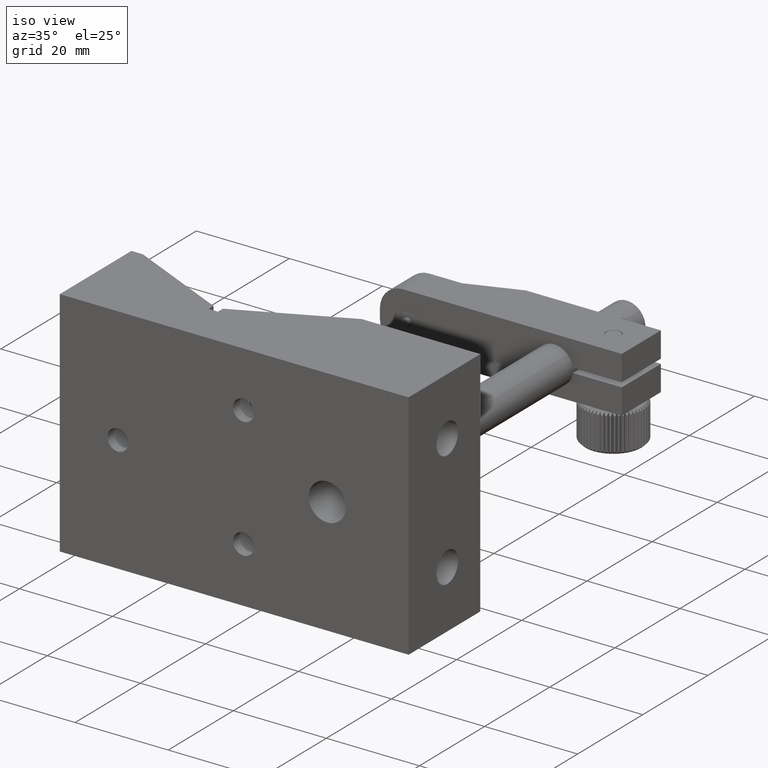
[diagram: clean part render]
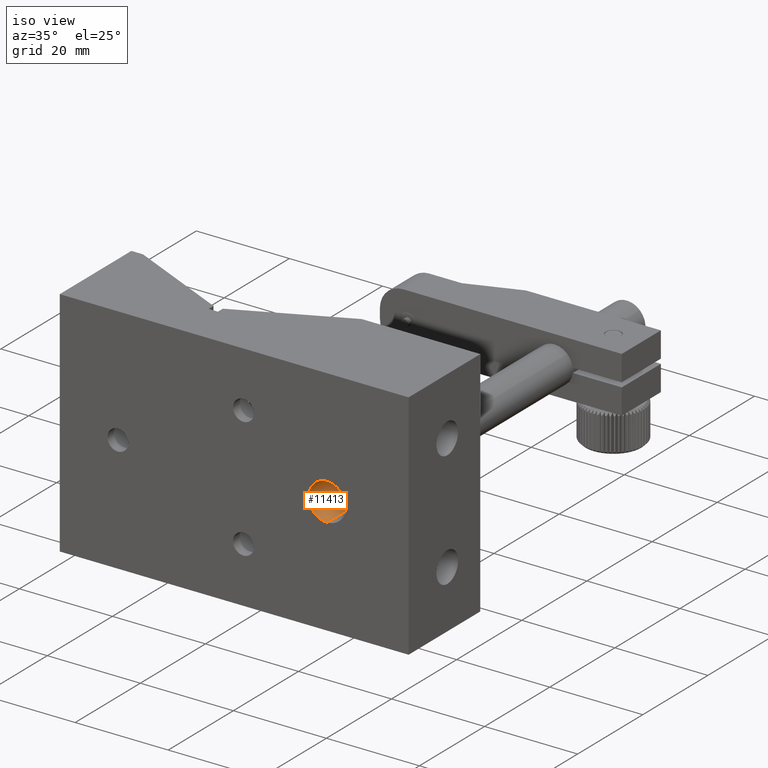
[diagram: same view with one face highlighted and labeled with its STEP entity id]
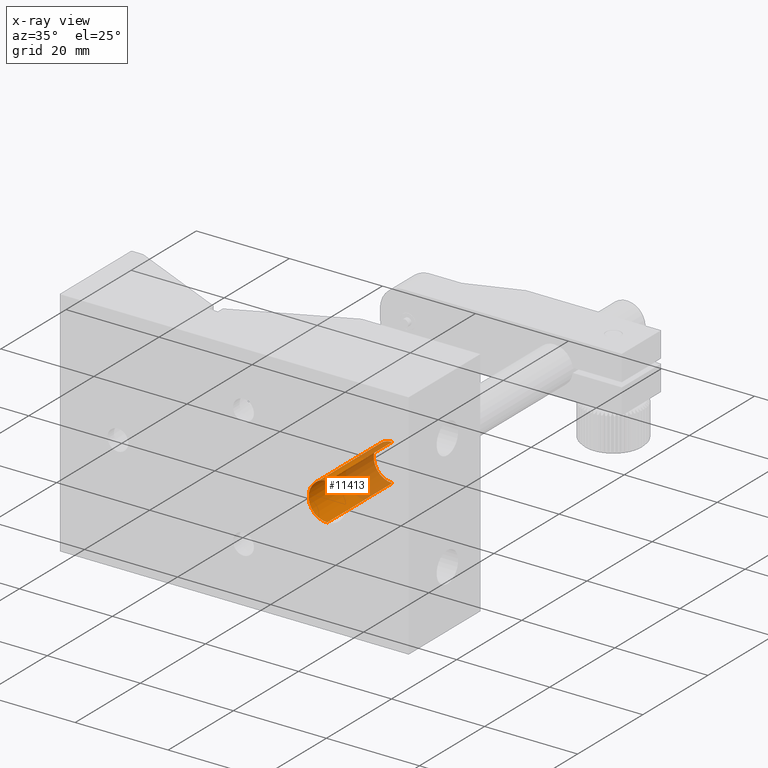
[diagram: x-ray of the same camera — body ghosted, the highlighted face saturated]
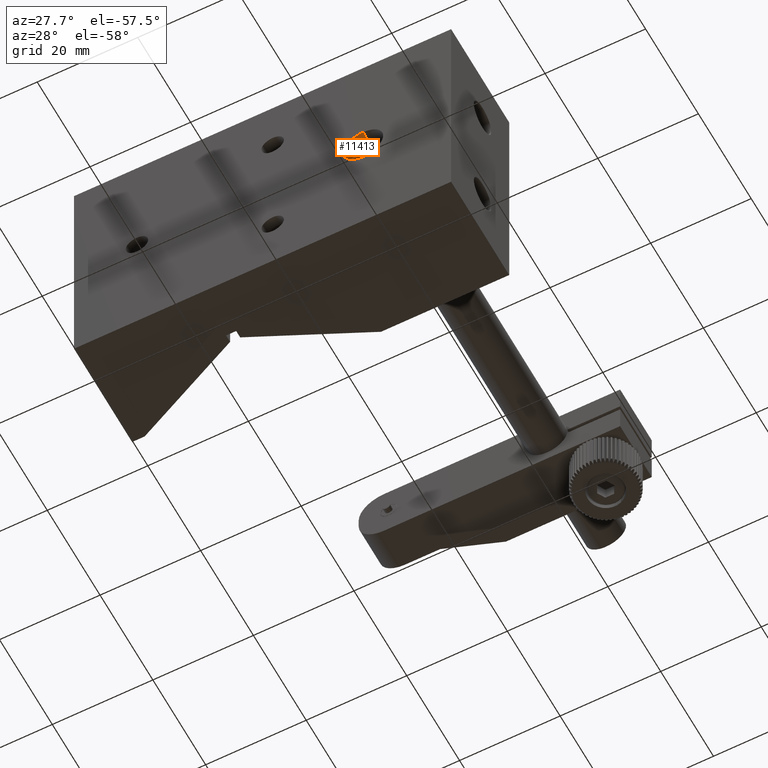
[diagram: same view with one face highlighted and labeled with its STEP entity id]
A machine part, iso view. The second image highlights one B-rep face of the part: STEP entity #11413.
The next image is the same camera in x-ray: the body ghosted, the highlighted face saturated — about 42% of this face is hidden behind the body in this view.
A second angle (auxiliary view) of the same face is appended — the face is thin or edge-on in the first view.
In plain terms, the highlighted cylindrical surface (edge-blend (fillet) strip) has radius 4 mm, axis along (-0, -1, -0).
Its self-contained STEP definition (entity closure, byte-faithful):
#238 = EDGE_CURVE ( 'NONE', #2602, #10540, #8583, .T. ) ;
#473 = CARTESIAN_POINT ( 'NONE',  ( 16.78603302097275600, -6.590138331102179100, 3.999999999999998200 ) ) ;
#598 = FACE_OUTER_BOUND ( 'NONE', #7436, .T. ) ;
#1151 = CARTESIAN_POINT ( 'NONE',  ( 16.78603302097275600, -6.590138331102179100, 1.734723475976807100E-015 ) ) ;
#1582 = CARTESIAN_POINT ( 'NONE',  ( 16.78603302097275600, 13.40986166889782200, 1.734723475976807100E-015 ) ) ;
#1753 = AXIS2_PLACEMENT_3D ( 'NONE', #1151, #5439, #5392 ) ;
#1968 = ORIENTED_EDGE ( 'NONE', *, *, #9744, .T. ) ;
#2425 = CYLINDRICAL_SURFACE ( 'NONE', #8340, 3.999999999999996400 ) ;
#2602 = VERTEX_POINT ( 'NONE', #10572 ) ;
#2665 = ORIENTED_EDGE ( 'NONE', *, *, #238, .F. ) ;
#2953 = EDGE_CURVE ( 'NONE', #3835, #2602, #5665, .T. ) ;
#3167 = ORIENTED_EDGE ( 'NONE', *, *, #2953, .F. ) ;
#3468 = VECTOR ( 'NONE', #12275, 1000.000000000000000 ) ;
#3835 = VERTEX_POINT ( 'NONE', #5866 ) ;
#4069 = ORIENTED_EDGE ( 'NONE', *, *, #4219, .T. ) ;
#4219 = EDGE_CURVE ( 'NONE', #3835, #10980, #4969, .T. ) ;
#4514 = CARTESIAN_POINT ( 'NONE',  ( 16.78603302097275600, -6.590138331102179100, 3.999999999999998200 ) ) ;
#4872 = CARTESIAN_POINT ( 'NONE',  ( 16.78603302097275600, -6.590138331102179100, -3.999999999999994700 ) ) ;
#4969 = LINE ( 'NONE', #473, #3468 ) ;
#5392 = DIRECTION ( 'NONE',  ( 0.0000000000000000000, 0.0000000000000000000, -1.000000000000000000 ) ) ;
#5439 = DIRECTION ( 'NONE',  ( -0.0000000000000000000, -1.000000000000000000, -0.0000000000000000000 ) ) ;
#5665 = CIRCLE ( 'NONE', #11010, 3.999999999999996400 ) ;
#5866 = CARTESIAN_POINT ( 'NONE',  ( 16.78603302097275600, 13.40986166889782200, 3.999999999999998200 ) ) ;
#7183 = CARTESIAN_POINT ( 'NONE',  ( 16.78603302097275600, -6.590138331102179100, 1.734723475976807100E-015 ) ) ;
#7436 = EDGE_LOOP ( 'NONE', ( #3167, #4069, #1968, #2665 ) ) ;
#8340 = AXIS2_PLACEMENT_3D ( 'NONE', #7183, #9349, #10446 ) ;
#8583 = LINE ( 'NONE', #4872, #10063 ) ;
#8951 = DIRECTION ( 'NONE',  ( -0.0000000000000000000, -1.000000000000000000, -0.0000000000000000000 ) ) ;
#9349 = DIRECTION ( 'NONE',  ( -0.0000000000000000000, -1.000000000000000000, -0.0000000000000000000 ) ) ;
#9744 = EDGE_CURVE ( 'NONE', #10980, #10540, #11181, .T. ) ;
#10063 = VECTOR ( 'NONE', #12368, 1000.000000000000000 ) ;
#10446 = DIRECTION ( 'NONE',  ( 0.0000000000000000000, 0.0000000000000000000, -1.000000000000000000 ) ) ;
#10540 = VERTEX_POINT ( 'NONE', #13486 ) ;
#10572 = CARTESIAN_POINT ( 'NONE',  ( 16.78603302097275600, 13.40986166889782200, -3.999999999999994700 ) ) ;
#10980 = VERTEX_POINT ( 'NONE', #4514 ) ;
#11010 = AXIS2_PLACEMENT_3D ( 'NONE', #1582, #8951, #11179 ) ;
#11179 = DIRECTION ( 'NONE',  ( 0.0000000000000000000, 0.0000000000000000000, -1.000000000000000000 ) ) ;
#11181 = CIRCLE ( 'NONE', #1753, 3.999999999999996400 ) ;
#11413 = ADVANCED_FACE ( 'NONE', ( #598 ), #2425, .F. ) ;
#12275 = DIRECTION ( 'NONE',  ( -0.0000000000000000000, -1.000000000000000000, -0.0000000000000000000 ) ) ;
#12368 = DIRECTION ( 'NONE',  ( -0.0000000000000000000, -1.000000000000000000, -0.0000000000000000000 ) ) ;
#13486 = CARTESIAN_POINT ( 'NONE',  ( 16.78603302097275600, -6.590138331102179100, -3.999999999999994700 ) ) ;